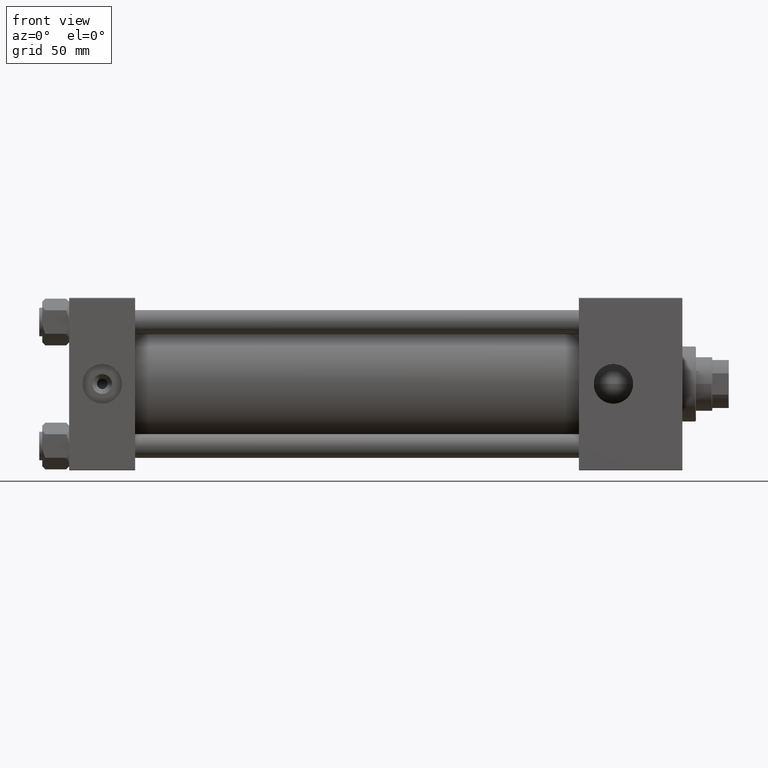
[diagram: clean part render]
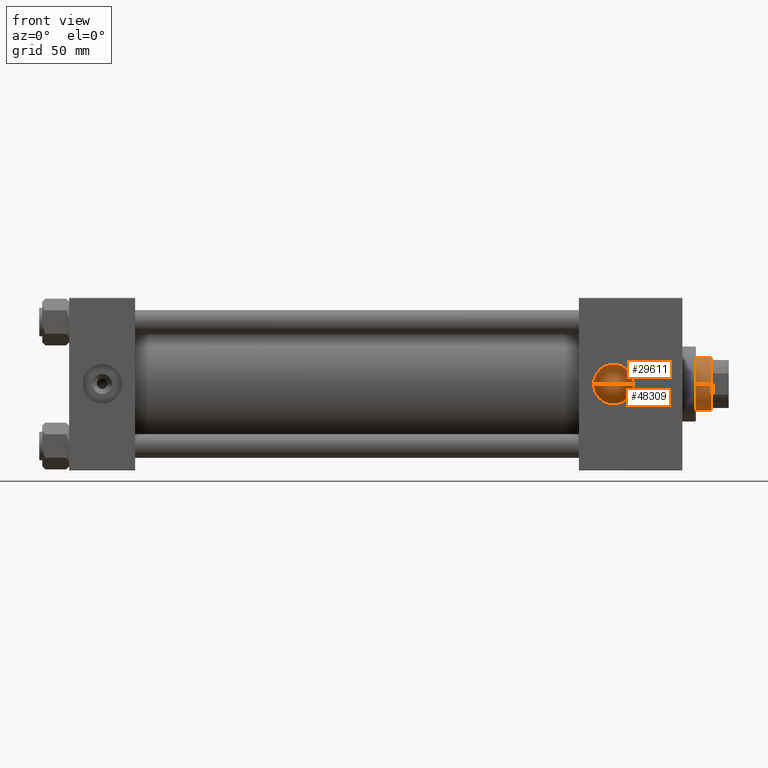
[diagram: same view with one multi-face feature highlighted, each face labeled with its STEP entity id]
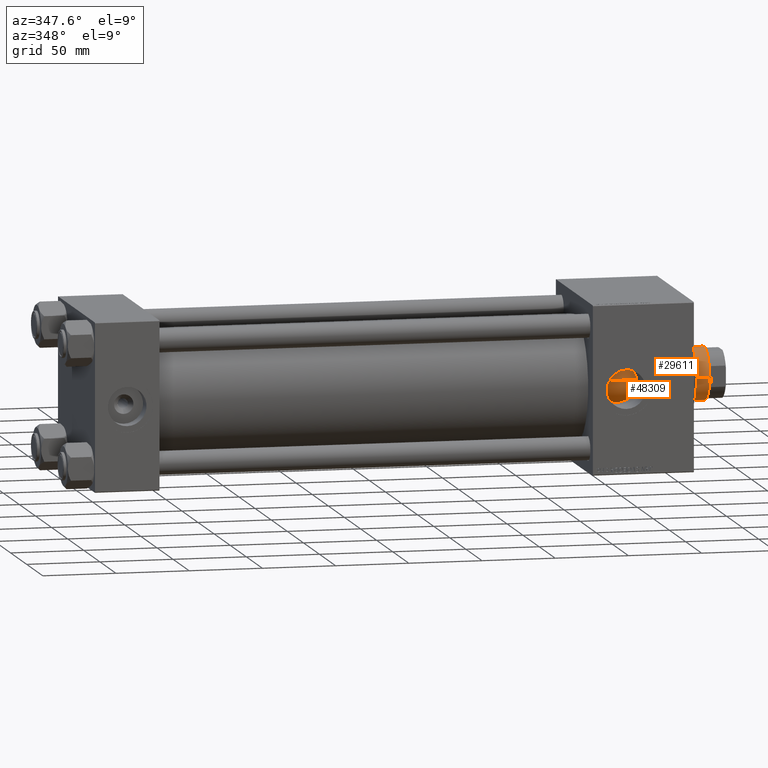
[diagram: same view with one multi-face feature highlighted, each face labeled with its STEP entity id]
A machine part, front view. The highlighted faces form ONE feature: a constant-radius fillet chain: 2 tangent blend faces with common blend radius 18 mm. The faces share edges in the B-rep.
A second angle (auxiliary view) of the same feature is appended — it is thin or edge-on in the first view.
Their STEP definitions:
[1] entity #48309 (Cylinder):
#1584 = LINE ( 'NONE', #21571, #7589 ) ;
#3193 = VECTOR ( 'NONE', #20472, 1000.000000000000000 ) ;
#4083 = DIRECTION ( 'NONE',  ( 1.000000000000000000, 0.000000000000000000, 0.000000000000000000 ) ) ;
#4597 = CARTESIAN_POINT ( 'NONE',  ( 0.000000000000000000, 0.000000000000000000, 46.00000000000000000 ) ) ;
#5909 = ORIENTED_EDGE ( 'NONE', *, *, #35302, .T. ) ;
#7589 = VECTOR ( 'NONE', #44210, 1000.000000000000000 ) ;
#8940 = LINE ( 'NONE', #48758, #3193 ) ;
#10715 = CARTESIAN_POINT ( 'NONE',  ( 18.00000000000000000, 2.204364238465235428E-15, 384.5000000000000568 ) ) ;
#11462 = EDGE_LOOP ( 'NONE', ( #28352, #22393, #5909, #24441 ) ) ;
#12048 = DIRECTION ( 'NONE',  ( 0.000000000000000000, 0.000000000000000000, 1.000000000000000000 ) ) ;
#12773 = VERTEX_POINT ( 'NONE', #23636 ) ;
#13325 = DIRECTION ( 'NONE',  ( -0.000000000000000000, -0.000000000000000000, -1.000000000000000000 ) ) ;
#18001 = DIRECTION ( 'NONE',  ( 1.000000000000000000, 0.000000000000000000, 0.000000000000000000 ) ) ;
#18797 = EDGE_CURVE ( 'NONE', #36701, #34463, #26122, .T. ) ;
#19051 = CARTESIAN_POINT ( 'NONE',  ( 18.00000000000000000, 2.204364238465235428E-15, 46.00000000000000000 ) ) ;
#19423 = EDGE_CURVE ( 'NONE', #36701, #12773, #8940, .T. ) ;
#20472 = DIRECTION ( 'NONE',  ( -0.000000000000000000, -0.000000000000000000, -1.000000000000000000 ) ) ;
#20997 = DIRECTION ( 'NONE',  ( -1.000000000000000000, 0.000000000000000000, 0.000000000000000000 ) ) ;
#21571 = CARTESIAN_POINT ( 'NONE',  ( 18.00000000000000000, 2.204364238465235428E-15, 385.0000000000000000 ) ) ;
#22393 = ORIENTED_EDGE ( 'NONE', *, *, #35026, .T. ) ;
#23636 = CARTESIAN_POINT ( 'NONE',  ( -18.00000000000000000, 0.000000000000000000, 46.00000000000000000 ) ) ;
#24441 = ORIENTED_EDGE ( 'NONE', *, *, #19423, .F. ) ;
#25222 = CARTESIAN_POINT ( 'NONE',  ( 0.000000000000000000, 0.000000000000000000, 384.5000000000000568 ) ) ;
#25383 = FACE_OUTER_BOUND ( 'NONE', #11462, .T. ) ;
#26122 = CIRCLE ( 'NONE', #32704, 18.00000000000000000 ) ;
#26830 = AXIS2_PLACEMENT_3D ( 'NONE', #44402, #13325, #20997 ) ;
#27278 = AXIS2_PLACEMENT_3D ( 'NONE', #4597, #12048, #4083 ) ;
#28352 = ORIENTED_EDGE ( 'NONE', *, *, #18797, .T. ) ;
#32704 = AXIS2_PLACEMENT_3D ( 'NONE', #25222, #44250, #18001 ) ;
#34463 = VERTEX_POINT ( 'NONE', #10715 ) ;
#35026 = EDGE_CURVE ( 'NONE', #34463, #45565, #1584, .T. ) ;
#35302 = EDGE_CURVE ( 'NONE', #45565, #12773, #36258, .T. ) ;
#36258 = CIRCLE ( 'NONE', #27278, 18.00000000000000000 ) ;
#36701 = VERTEX_POINT ( 'NONE', #46154 ) ;
#44210 = DIRECTION ( 'NONE',  ( -0.000000000000000000, -0.000000000000000000, -1.000000000000000000 ) ) ;
#44250 = DIRECTION ( 'NONE',  ( 0.000000000000000000, 0.000000000000000000, -1.000000000000000000 ) ) ;
#44402 = CARTESIAN_POINT ( 'NONE',  ( 0.000000000000000000, 0.000000000000000000, 385.0000000000000000 ) ) ;
#45565 = VERTEX_POINT ( 'NONE', #19051 ) ;
#46154 = CARTESIAN_POINT ( 'NONE',  ( -18.00000000000000000, 0.000000000000000000, 384.5000000000000568 ) ) ;
#48309 = ADVANCED_FACE ( 'NONE', ( #25383 ), #49272, .T. ) ;
#48758 = CARTESIAN_POINT ( 'NONE',  ( -18.00000000000000000, 0.000000000000000000, 385.0000000000000000 ) ) ;
#49272 = CYLINDRICAL_SURFACE ( 'NONE', #26830, 18.00000000000000000 ) ;
[2] entity #29611 (Cylinder):
#1584 = LINE ( 'NONE', #21571, #7589 ) ;
#2596 = AXIS2_PLACEMENT_3D ( 'NONE', #9933, #41265, #6091 ) ;
#3193 = VECTOR ( 'NONE', #20472, 1000.000000000000000 ) ;
#6091 = DIRECTION ( 'NONE',  ( -1.000000000000000000, 0.000000000000000000, 0.000000000000000000 ) ) ;
#7589 = VECTOR ( 'NONE', #44210, 1000.000000000000000 ) ;
#8940 = LINE ( 'NONE', #48758, #3193 ) ;
#9640 = EDGE_CURVE ( 'NONE', #12773, #45565, #48547, .T. ) ;
#9933 = CARTESIAN_POINT ( 'NONE',  ( 0.000000000000000000, 0.000000000000000000, 385.0000000000000000 ) ) ;
#10045 = CARTESIAN_POINT ( 'NONE',  ( 0.000000000000000000, 0.000000000000000000, 384.5000000000000568 ) ) ;
#10715 = CARTESIAN_POINT ( 'NONE',  ( 18.00000000000000000, 2.204364238465235428E-15, 384.5000000000000568 ) ) ;
#11573 = EDGE_CURVE ( 'NONE', #34463, #36701, #15767, .T. ) ;
#12773 = VERTEX_POINT ( 'NONE', #23636 ) ;
#13896 = DIRECTION ( 'NONE',  ( 0.000000000000000000, 0.000000000000000000, -1.000000000000000000 ) ) ;
#15767 = CIRCLE ( 'NONE', #21514, 18.00000000000000000 ) ;
#18122 = CYLINDRICAL_SURFACE ( 'NONE', #2596, 18.00000000000000000 ) ;
#19051 = CARTESIAN_POINT ( 'NONE',  ( 18.00000000000000000, 2.204364238465235428E-15, 46.00000000000000000 ) ) ;
#19423 = EDGE_CURVE ( 'NONE', #36701, #12773, #8940, .T. ) ;
#20472 = DIRECTION ( 'NONE',  ( -0.000000000000000000, -0.000000000000000000, -1.000000000000000000 ) ) ;
#21514 = AXIS2_PLACEMENT_3D ( 'NONE', #10045, #13896, #21829 ) ;
#21571 = CARTESIAN_POINT ( 'NONE',  ( 18.00000000000000000, 2.204364238465235428E-15, 385.0000000000000000 ) ) ;
#21829 = DIRECTION ( 'NONE',  ( 1.000000000000000000, 0.000000000000000000, 0.000000000000000000 ) ) ;
#23636 = CARTESIAN_POINT ( 'NONE',  ( -18.00000000000000000, 0.000000000000000000, 46.00000000000000000 ) ) ;
#25010 = EDGE_LOOP ( 'NONE', ( #37234, #34205, #41101, #29899 ) ) ;
#26374 = AXIS2_PLACEMENT_3D ( 'NONE', #27218, #43122, #42880 ) ;
#27218 = CARTESIAN_POINT ( 'NONE',  ( 0.000000000000000000, 0.000000000000000000, 46.00000000000000000 ) ) ;
#29611 = ADVANCED_FACE ( 'NONE', ( #45106 ), #18122, .T. ) ;
#29899 = ORIENTED_EDGE ( 'NONE', *, *, #9640, .T. ) ;
#34205 = ORIENTED_EDGE ( 'NONE', *, *, #11573, .T. ) ;
#34463 = VERTEX_POINT ( 'NONE', #10715 ) ;
#35026 = EDGE_CURVE ( 'NONE', #34463, #45565, #1584, .T. ) ;
#36701 = VERTEX_POINT ( 'NONE', #46154 ) ;
#37234 = ORIENTED_EDGE ( 'NONE', *, *, #35026, .F. ) ;
#41101 = ORIENTED_EDGE ( 'NONE', *, *, #19423, .T. ) ;
#41265 = DIRECTION ( 'NONE',  ( -0.000000000000000000, -0.000000000000000000, -1.000000000000000000 ) ) ;
#42880 = DIRECTION ( 'NONE',  ( 1.000000000000000000, 0.000000000000000000, 0.000000000000000000 ) ) ;
#43122 = DIRECTION ( 'NONE',  ( 0.000000000000000000, 0.000000000000000000, 1.000000000000000000 ) ) ;
#44210 = DIRECTION ( 'NONE',  ( -0.000000000000000000, -0.000000000000000000, -1.000000000000000000 ) ) ;
#45106 = FACE_OUTER_BOUND ( 'NONE', #25010, .T. ) ;
#45565 = VERTEX_POINT ( 'NONE', #19051 ) ;
#46154 = CARTESIAN_POINT ( 'NONE',  ( -18.00000000000000000, 0.000000000000000000, 384.5000000000000568 ) ) ;
#48547 = CIRCLE ( 'NONE', #26374, 18.00000000000000000 ) ;
#48758 = CARTESIAN_POINT ( 'NONE',  ( -18.00000000000000000, 0.000000000000000000, 385.0000000000000000 ) ) ;